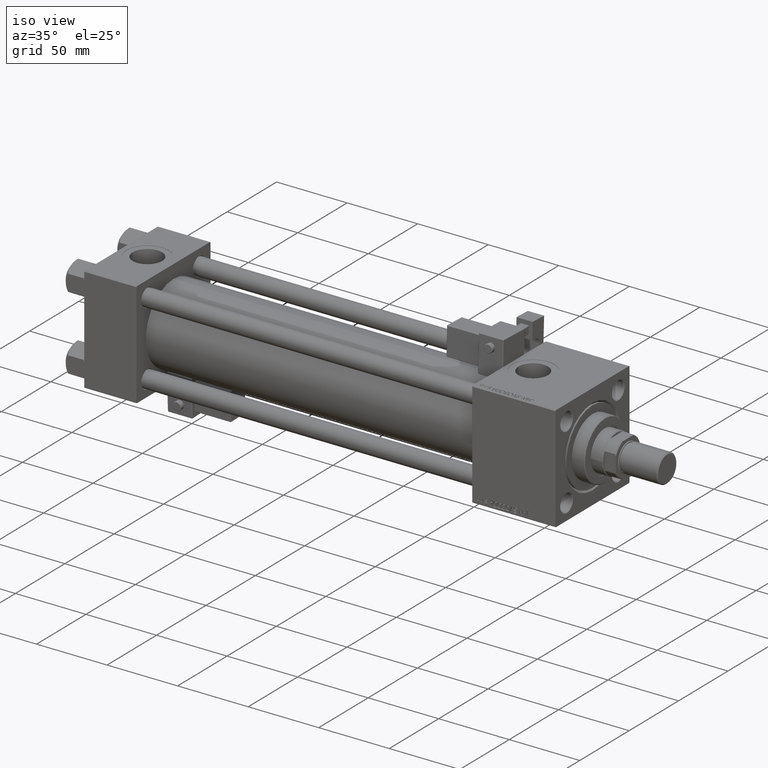
[diagram: clean part render]
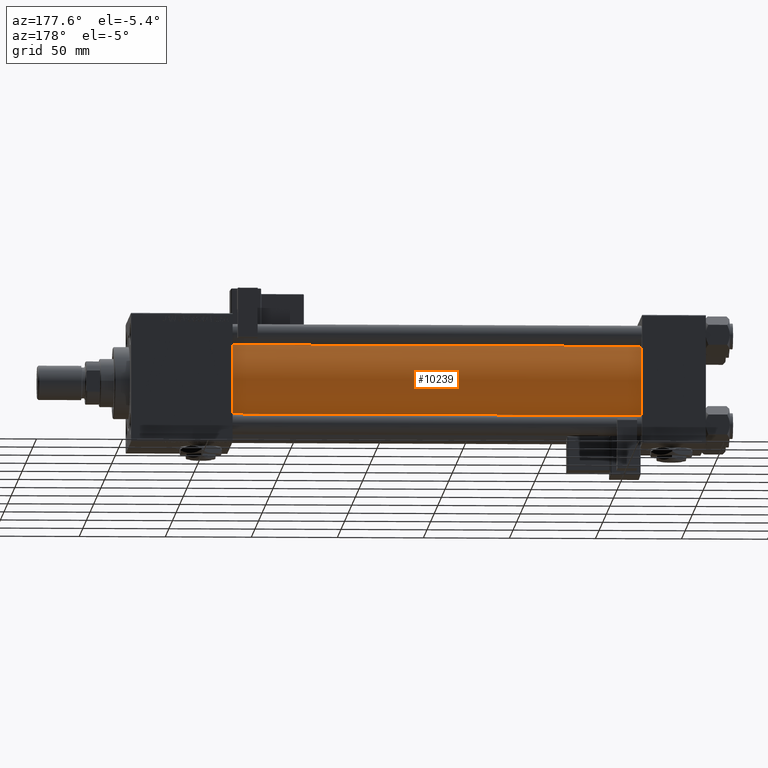
[diagram: tour spotlight — one face highlighted and labeled with its STEP entity id]
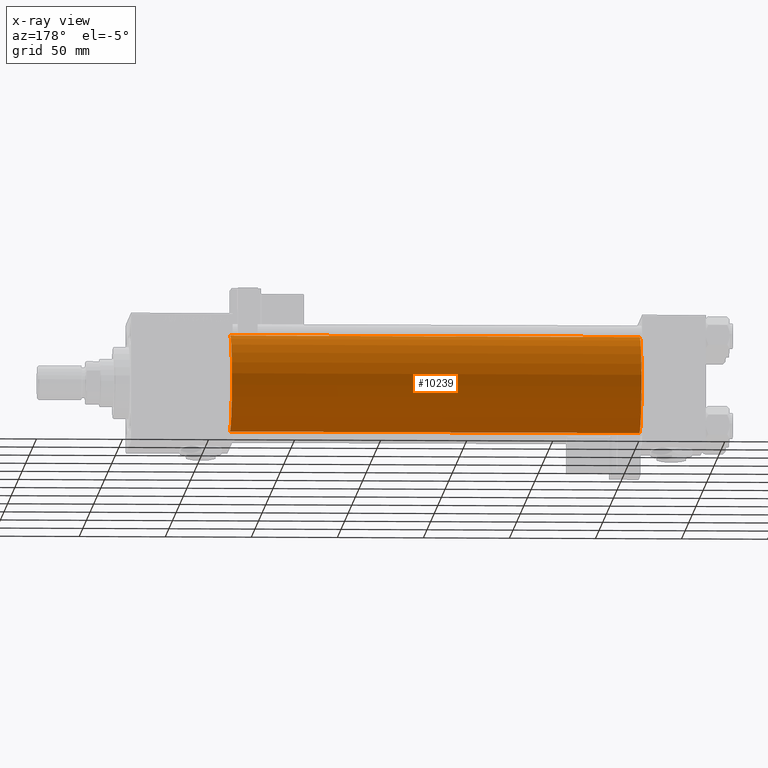
[diagram: x-ray of the same camera — body ghosted, this tour face saturated]
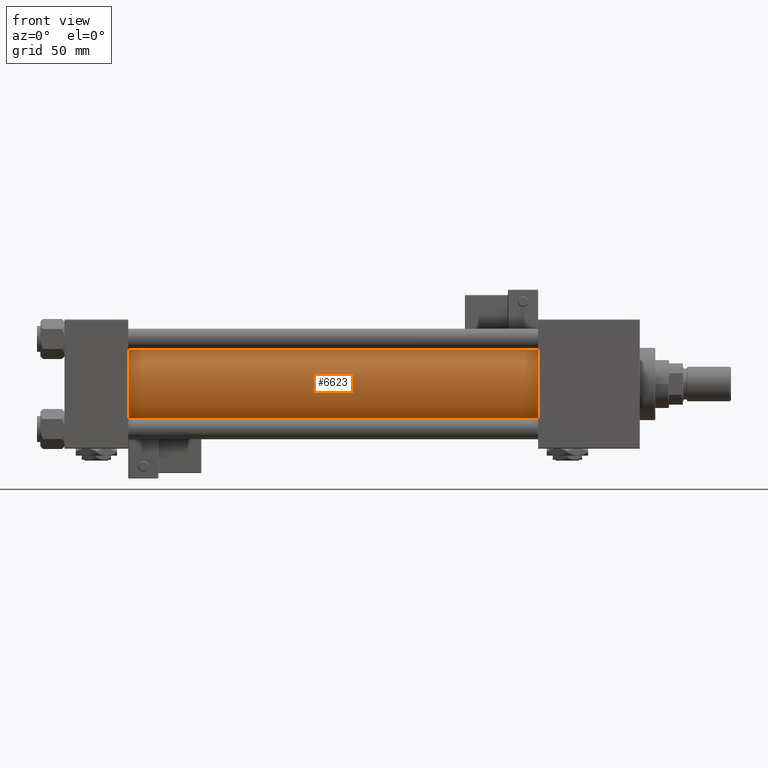
[diagram: tour spotlight — one face highlighted and labeled with its STEP entity id]
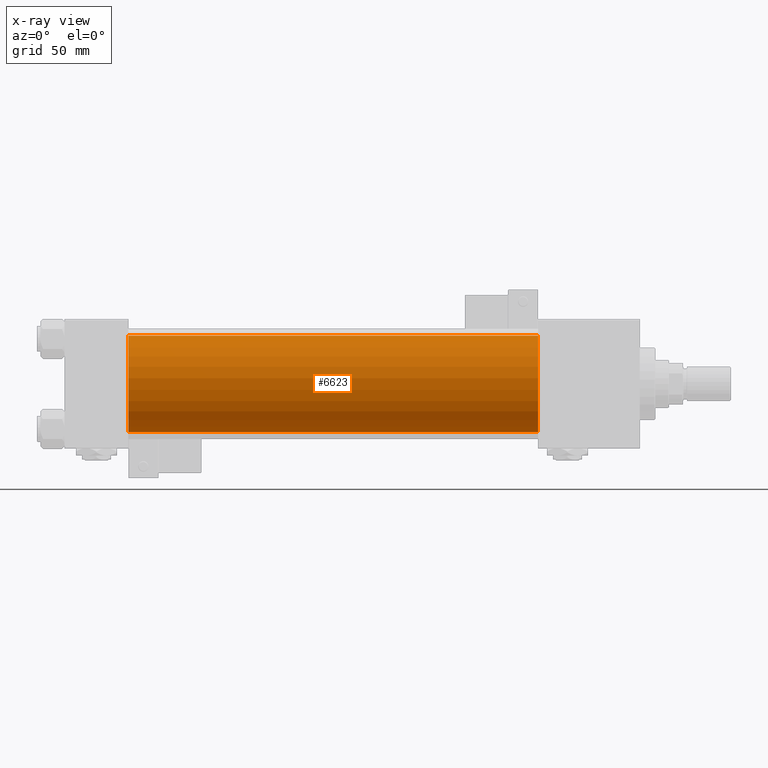
[diagram: x-ray of the same camera — body ghosted, this tour face saturated]
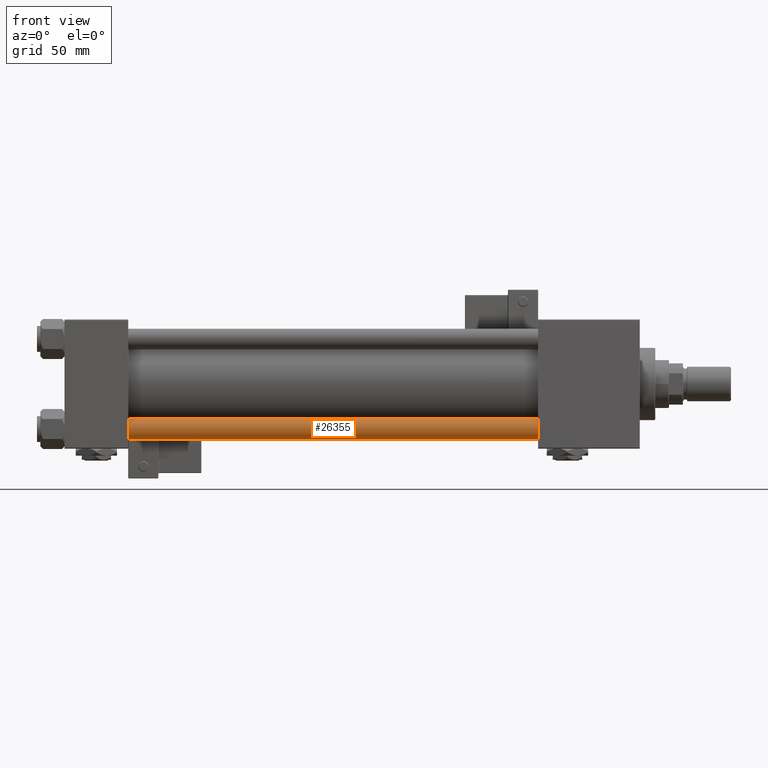
[diagram: tour spotlight — one face highlighted and labeled with its STEP entity id]
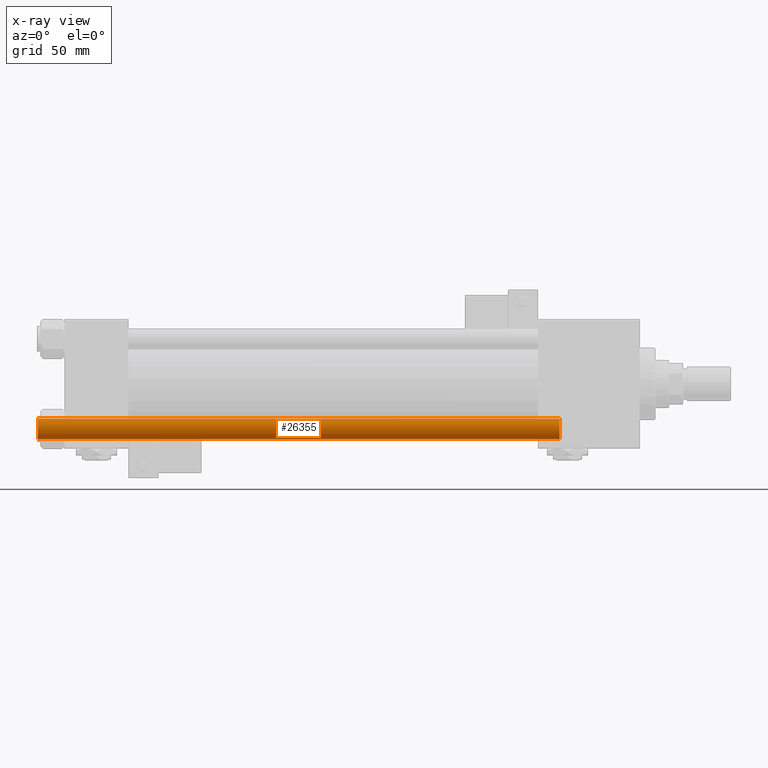
[diagram: x-ray of the same camera — body ghosted, this tour face saturated]
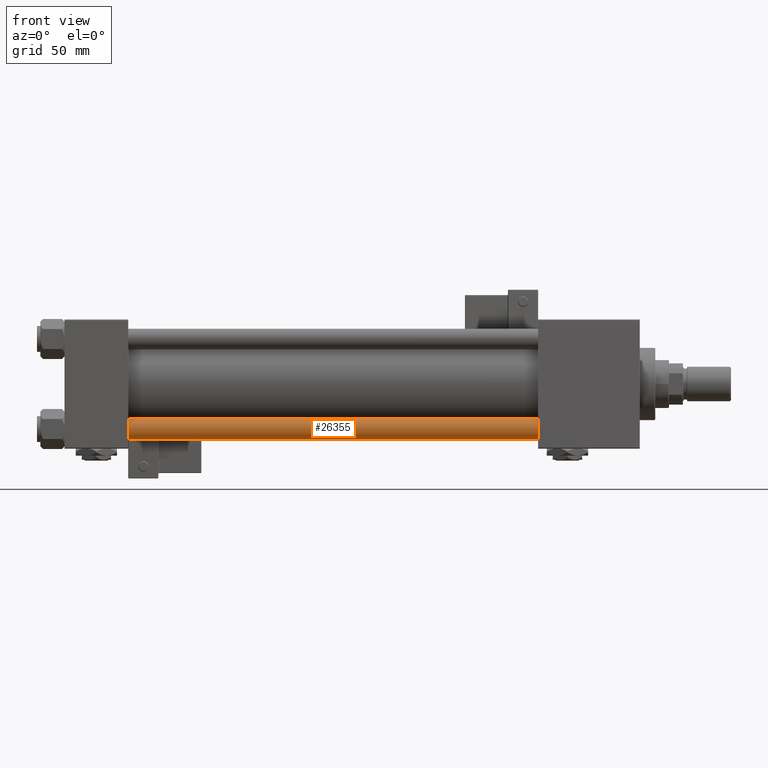
[diagram: tour spotlight — one face highlighted and labeled with its STEP entity id]
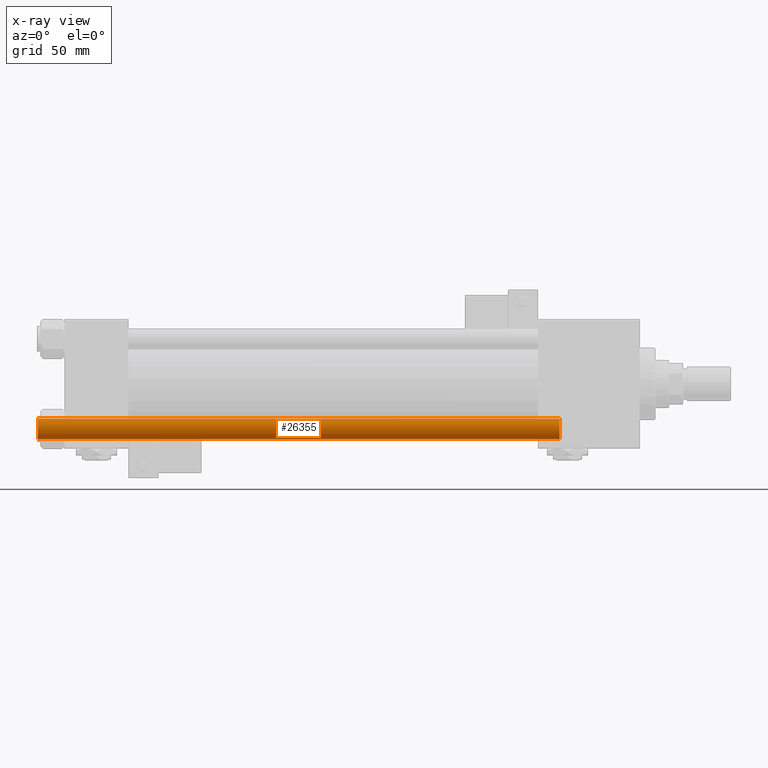
[diagram: x-ray of the same camera — body ghosted, this tour face saturated]
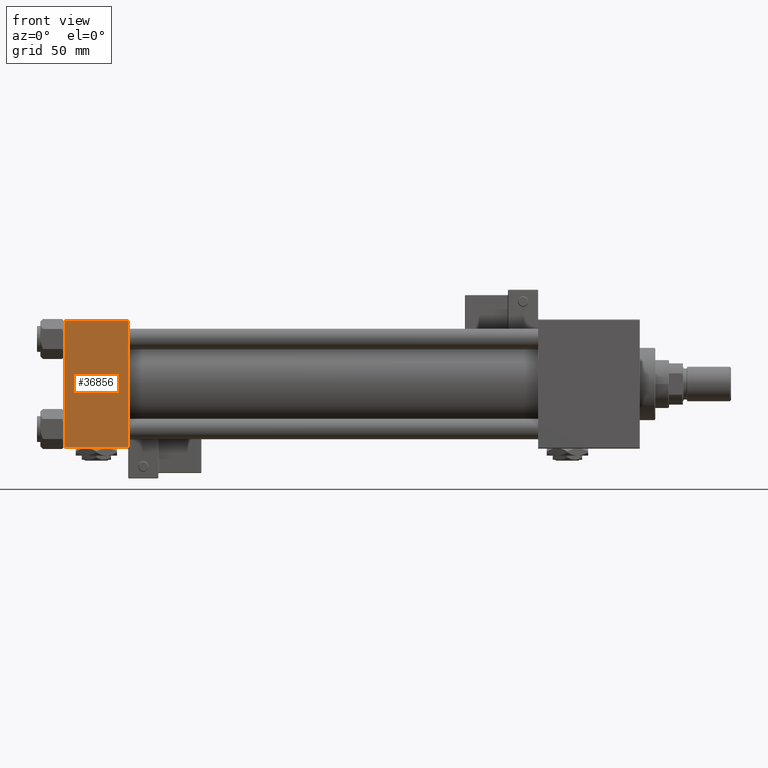
[diagram: tour spotlight — one face highlighted and labeled with its STEP entity id]
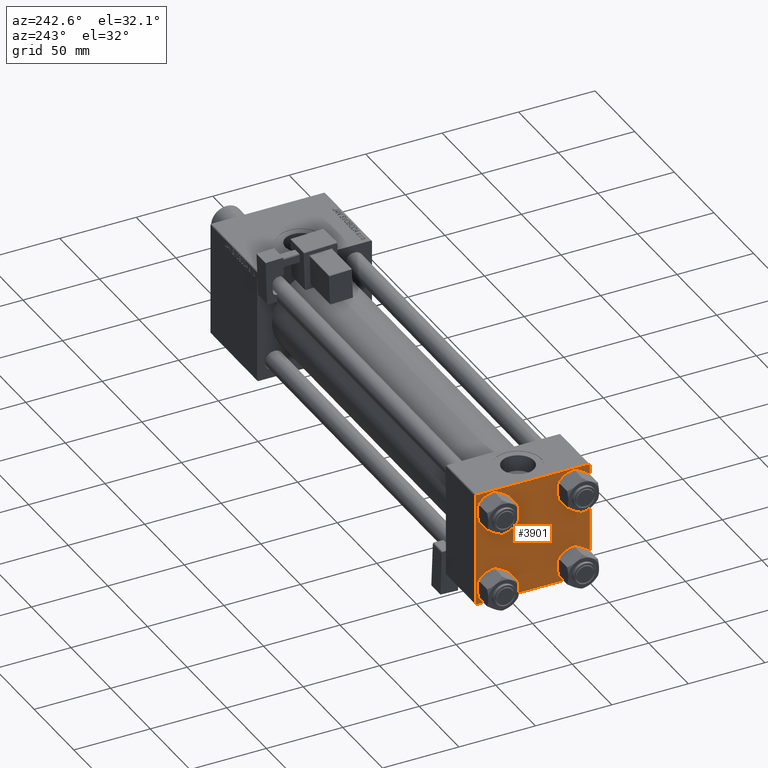
[diagram: tour spotlight — one face highlighted and labeled with its STEP entity id]
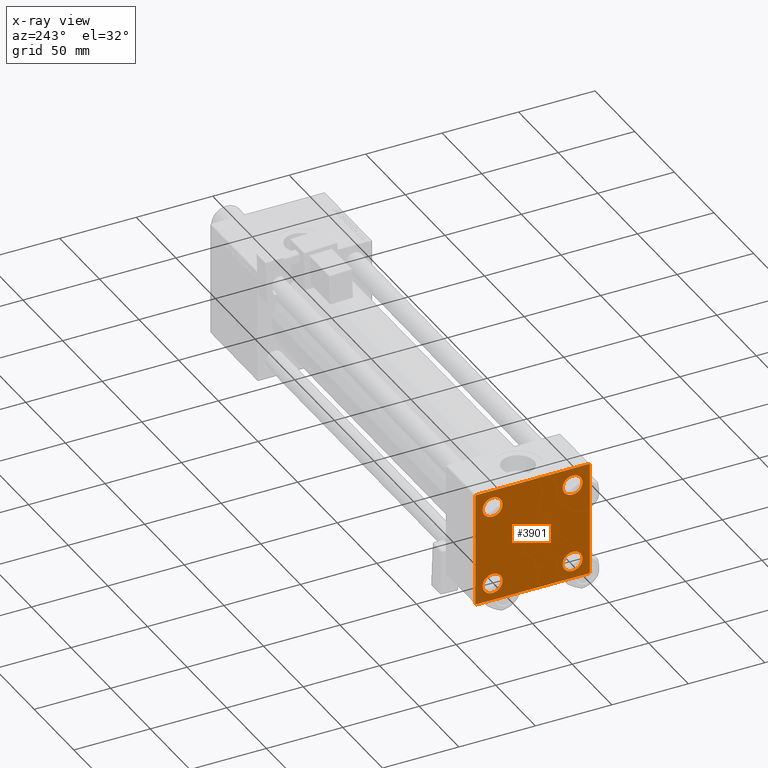
[diagram: x-ray of the same camera — body ghosted, this tour face saturated]
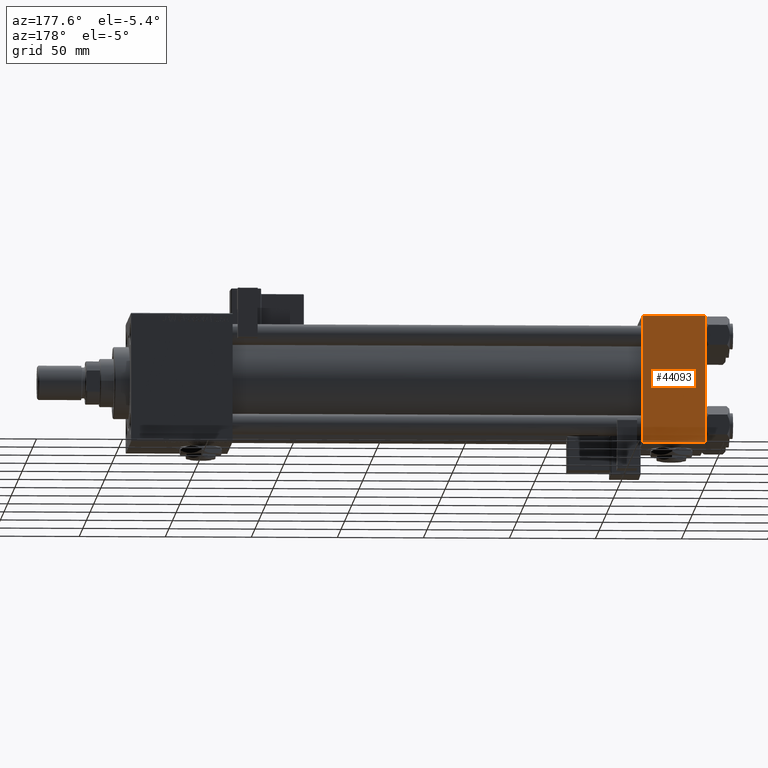
[diagram: tour spotlight — one face highlighted and labeled with its STEP entity id]
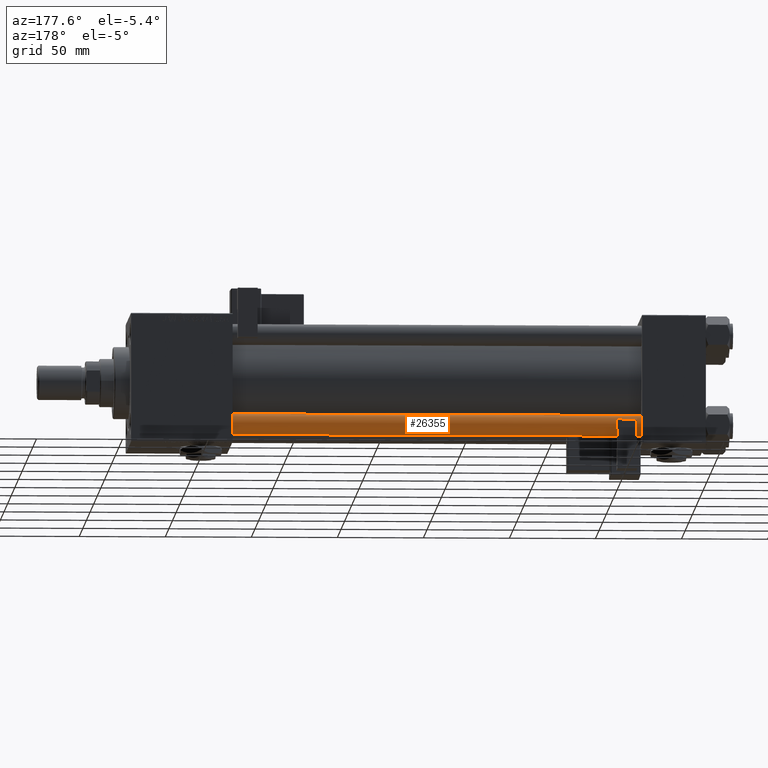
[diagram: tour spotlight — one face highlighted and labeled with its STEP entity id]
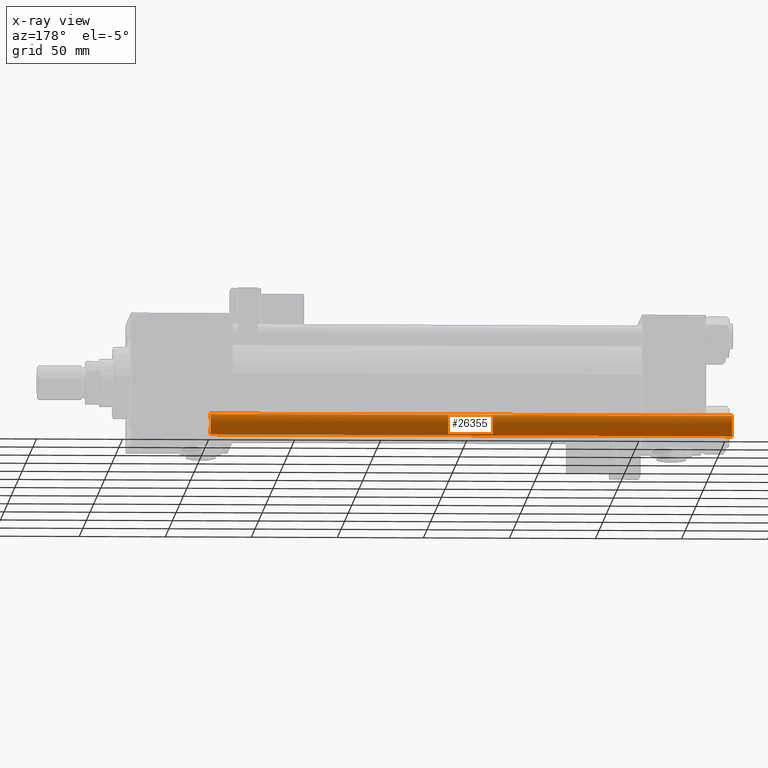
[diagram: x-ray of the same camera — body ghosted, this tour face saturated]
A machine part: a face-by-face anatomy tour. The part has 1417 B-rep faces; the first image is the clean iso view, then the 8 largest visible faces are spotlighted one at a time (largest first), each with its STEP entity span.

Face 1 — auxiliary view, entity #10239. An x-ray twin of the same camera follows (body ghosted, this face saturated) — the face is partly hidden behind the body. In plain terms, the highlighted cylindrical surface (partial cylindrical patch) has radius 28 mm, axis along (-1, -0, -0).
Definition (entity closure, byte-faithful):
#1012 = CIRCLE ( 'NONE', #2797, 28.00000000000000000 ) ;
#1920 = CARTESIAN_POINT ( 'NONE',  ( 274.9999999999999432, -2.602085213965210642E-15, 0.000000000000000000 ) ) ;
#2797 = AXIS2_PLACEMENT_3D ( 'NONE', #46128, #49769, #25023 ) ;
#3661 = VECTOR ( 'NONE', #34195, 1000.000000000000000 ) ;
#7247 = CARTESIAN_POINT ( 'NONE',  ( 274.9999999999999432, 8.269258236473784371E-16, -28.00000000000000000 ) ) ;
#8634 = CARTESIAN_POINT ( 'NONE',  ( 274.9999999999999432, -2.602085213965210642E-15, 28.00000000000000000 ) ) ;
#9116 = CARTESIAN_POINT ( 'NONE',  ( 274.9999999999999432, -2.602085213965210642E-15, 0.000000000000000000 ) ) ;
#9453 = LINE ( 'NONE', #8634, #3661 ) ;
#9574 = ORIENTED_EDGE ( 'NONE', *, *, #38151, .T. ) ;
#9719 = CIRCLE ( 'NONE', #33799, 28.00000000000000000 ) ;
#9996 = EDGE_CURVE ( 'NONE', #22721, #11408, #9719, .T. ) ;
#10239 = ADVANCED_FACE ( 'NONE', ( #31045 ), #47149, .T. ) ;
#11408 = VERTEX_POINT ( 'NONE', #48187 ) ;
#14714 = DIRECTION ( 'NONE',  ( 0.000000000000000000, 0.000000000000000000, -1.000000000000000000 ) ) ;
#18874 = DIRECTION ( 'NONE',  ( 1.000000000000000000, 0.000000000000000000, 0.000000000000000000 ) ) ;
#20467 = CARTESIAN_POINT ( 'NONE',  ( 37.00000000000000711, -2.602085213965210642E-15, 28.00000000000000000 ) ) ;
#20825 = LINE ( 'NONE', #50261, #33479 ) ;
#22475 = ORIENTED_EDGE ( 'NONE', *, *, #48616, .F. ) ;
#22721 = VERTEX_POINT ( 'NONE', #7247 ) ;
#23063 = ORIENTED_EDGE ( 'NONE', *, *, #48489, .T. ) ;
#23529 = ORIENTED_EDGE ( 'NONE', *, *, #9996, .F. ) ;
#25023 = DIRECTION ( 'NONE',  ( 0.000000000000000000, 0.000000000000000000, 1.000000000000000000 ) ) ;
#31045 = FACE_OUTER_BOUND ( 'NONE', #46124, .T. ) ;
#33479 = VECTOR ( 'NONE', #42213, 1000.000000000000000 ) ;
#33799 = AXIS2_PLACEMENT_3D ( 'NONE', #1920, #18874, #14714 ) ;
#34195 = DIRECTION ( 'NONE',  ( -1.000000000000000000, -0.000000000000000000, -0.000000000000000000 ) ) ;
#38151 = EDGE_CURVE ( 'NONE', #22721, #46910, #20825, .T. ) ;
#39377 = DIRECTION ( 'NONE',  ( 0.000000000000000000, 0.000000000000000000, 1.000000000000000000 ) ) ;
#42213 = DIRECTION ( 'NONE',  ( -1.000000000000000000, -0.000000000000000000, -0.000000000000000000 ) ) ;
#43004 = DIRECTION ( 'NONE',  ( -1.000000000000000000, -0.000000000000000000, -0.000000000000000000 ) ) ;
#44807 = CARTESIAN_POINT ( 'NONE',  ( 37.00000000000000711, 8.269258236473784371E-16, -28.00000000000000000 ) ) ;
#46124 = EDGE_LOOP ( 'NONE', ( #23529, #9574, #23063, #22475 ) ) ;
#46128 = CARTESIAN_POINT ( 'NONE',  ( 37.00000000000000711, -2.602085213965210642E-15, 0.000000000000000000 ) ) ;
#46910 = VERTEX_POINT ( 'NONE', #44807 ) ;
#47149 = CYLINDRICAL_SURFACE ( 'NONE', #51433, 28.00000000000000000 ) ;
#48187 = CARTESIAN_POINT ( 'NONE',  ( 274.9999999999999432, -2.602085213965210642E-15, 28.00000000000000000 ) ) ;
#48489 = EDGE_CURVE ( 'NONE', #46910, #51674, #1012, .T. ) ;
#48616 = EDGE_CURVE ( 'NONE', #11408, #51674, #9453, .T. ) ;
#49769 = DIRECTION ( 'NONE',  ( 1.000000000000000000, -0.000000000000000000, 0.000000000000000000 ) ) ;
#50261 = CARTESIAN_POINT ( 'NONE',  ( 274.9999999999999432, 8.269258236473784371E-16, -28.00000000000000000 ) ) ;
#51433 = AXIS2_PLACEMENT_3D ( 'NONE', #9116, #43004, #39377 ) ;
#51674 = VERTEX_POINT ( 'NONE', #20467 ) ;

Face 2 — front view, entity #6623. An x-ray twin of the same camera follows (body ghosted, this face saturated) — the face is partly hidden behind the body. In plain terms, the highlighted cylindrical surface (partial cylindrical patch) has radius 28 mm, axis along (-1, -0, -0).
Definition (entity closure, byte-faithful):
#3661 = VECTOR ( 'NONE', #34195, 1000.000000000000000 ) ;
#5069 = CYLINDRICAL_SURFACE ( 'NONE', #9723, 28.00000000000000000 ) ;
#5174 = CARTESIAN_POINT ( 'NONE',  ( 37.00000000000000711, -2.602085213965210642E-15, 0.000000000000000000 ) ) ;
#5982 = DIRECTION ( 'NONE',  ( 1.000000000000000000, -0.000000000000000000, 0.000000000000000000 ) ) ;
#6623 = ADVANCED_FACE ( 'NONE', ( #48365 ), #5069, .T. ) ;
#7247 = CARTESIAN_POINT ( 'NONE',  ( 274.9999999999999432, 8.269258236473784371E-16, -28.00000000000000000 ) ) ;
#8634 = CARTESIAN_POINT ( 'NONE',  ( 274.9999999999999432, -2.602085213965210642E-15, 28.00000000000000000 ) ) ;
#9453 = LINE ( 'NONE', #8634, #3661 ) ;
#9603 = DIRECTION ( 'NONE',  ( 0.000000000000000000, 0.000000000000000000, 1.000000000000000000 ) ) ;
#9723 = AXIS2_PLACEMENT_3D ( 'NONE', #10052, #51979, #18378 ) ;
#10052 = CARTESIAN_POINT ( 'NONE',  ( 274.9999999999999432, -2.602085213965210642E-15, 0.000000000000000000 ) ) ;
#10772 = CIRCLE ( 'NONE', #33837, 28.00000000000000000 ) ;
#11408 = VERTEX_POINT ( 'NONE', #48187 ) ;
#15866 = DIRECTION ( 'NONE',  ( 1.000000000000000000, 0.000000000000000000, 0.000000000000000000 ) ) ;
#15892 = ORIENTED_EDGE ( 'NONE', *, *, #48616, .T. ) ;
#16691 = ORIENTED_EDGE ( 'NONE', *, *, #26900, .F. ) ;
#17253 = ORIENTED_EDGE ( 'NONE', *, *, #38151, .F. ) ;
#18378 = DIRECTION ( 'NONE',  ( 0.000000000000000000, 0.000000000000000000, 1.000000000000000000 ) ) ;
#20467 = CARTESIAN_POINT ( 'NONE',  ( 37.00000000000000711, -2.602085213965210642E-15, 28.00000000000000000 ) ) ;
#20825 = LINE ( 'NONE', #50261, #33479 ) ;
#22721 = VERTEX_POINT ( 'NONE', #7247 ) ;
#26900 = EDGE_CURVE ( 'NONE', #11408, #22721, #40447, .T. ) ;
#31564 = AXIS2_PLACEMENT_3D ( 'NONE', #37249, #15866, #36440 ) ;
#33479 = VECTOR ( 'NONE', #42213, 1000.000000000000000 ) ;
#33837 = AXIS2_PLACEMENT_3D ( 'NONE', #5174, #5982, #9603 ) ;
#34195 = DIRECTION ( 'NONE',  ( -1.000000000000000000, -0.000000000000000000, -0.000000000000000000 ) ) ;
#36440 = DIRECTION ( 'NONE',  ( 0.000000000000000000, 0.000000000000000000, -1.000000000000000000 ) ) ;
#37249 = CARTESIAN_POINT ( 'NONE',  ( 274.9999999999999432, -2.602085213965210642E-15, 0.000000000000000000 ) ) ;
#37535 = ORIENTED_EDGE ( 'NONE', *, *, #49303, .T. ) ;
#38151 = EDGE_CURVE ( 'NONE', #22721, #46910, #20825, .T. ) ;
#40447 = CIRCLE ( 'NONE', #31564, 28.00000000000000000 ) ;
#42213 = DIRECTION ( 'NONE',  ( -1.000000000000000000, -0.000000000000000000, -0.000000000000000000 ) ) ;
#44807 = CARTESIAN_POINT ( 'NONE',  ( 37.00000000000000711, 8.269258236473784371E-16, -28.00000000000000000 ) ) ;
#46910 = VERTEX_POINT ( 'NONE', #44807 ) ;
#48187 = CARTESIAN_POINT ( 'NONE',  ( 274.9999999999999432, -2.602085213965210642E-15, 28.00000000000000000 ) ) ;
#48365 = FACE_OUTER_BOUND ( 'NONE', #52438, .T. ) ;
#48616 = EDGE_CURVE ( 'NONE', #11408, #51674, #9453, .T. ) ;
#49303 = EDGE_CURVE ( 'NONE', #51674, #46910, #10772, .T. ) ;
#50261 = CARTESIAN_POINT ( 'NONE',  ( 274.9999999999999432, 8.269258236473784371E-16, -28.00000000000000000 ) ) ;
#51674 = VERTEX_POINT ( 'NONE', #20467 ) ;
#51979 = DIRECTION ( 'NONE',  ( -1.000000000000000000, -0.000000000000000000, -0.000000000000000000 ) ) ;
#52438 = EDGE_LOOP ( 'NONE', ( #17253, #16691, #15892, #37535 ) ) ;

Face 3 — front view, entity #26355. An x-ray twin of the same camera follows (body ghosted, this face saturated) — the face is partly hidden behind the body. In plain terms, the highlighted cylindrical surface (edge-blend (fillet) strip) has radius 6 mm, axis along (1, 0, -0).
Definition (entity closure, byte-faithful):
#678 = DIRECTION ( 'NONE',  ( -1.000000000000000000, 0.000000000000000000, 0.000000000000000000 ) ) ;
#1745 = DIRECTION ( 'NONE',  ( -0.000000000000000000, -0.000000000000000000, -1.000000000000000000 ) ) ;
#2868 = CARTESIAN_POINT ( 'NONE',  ( 6.000000000000000888, 7.347880794884120722E-16, 303.5000000000000000 ) ) ;
#3709 = CARTESIAN_POINT ( 'NONE',  ( -6.000000000000000888, 0.000000000000000000, 304.0000000000000000 ) ) ;
#4377 = CIRCLE ( 'NONE', #46032, 6.000000000000000888 ) ;
#5114 = LINE ( 'NONE', #47858, #8282 ) ;
#5479 = EDGE_CURVE ( 'NONE', #18071, #48144, #4377, .T. ) ;
#6851 = ORIENTED_EDGE ( 'NONE', *, *, #5479, .T. ) ;
#8282 = VECTOR ( 'NONE', #1745, 1000.000000000000000 ) ;
#8854 = ORIENTED_EDGE ( 'NONE', *, *, #51306, .F. ) ;
#10113 = CARTESIAN_POINT ( 'NONE',  ( 0.000000000000000000, 0.000000000000000000, 303.5000000000000000 ) ) ;
#13731 = DIRECTION ( 'NONE',  ( -0.000000000000000000, -0.000000000000000000, -1.000000000000000000 ) ) ;
#13902 = VERTEX_POINT ( 'NONE', #45801 ) ;
#17139 = LINE ( 'NONE', #3709, #49861 ) ;
#17907 = CARTESIAN_POINT ( 'NONE',  ( 0.000000000000000000, 0.000000000000000000, 304.0000000000000000 ) ) ;
#18071 = VERTEX_POINT ( 'NONE', #44325 ) ;
#18322 = EDGE_CURVE ( 'NONE', #48144, #38599, #5114, .T. ) ;
#18431 = CARTESIAN_POINT ( 'NONE',  ( 6.000000000000000888, 7.347880794884120722E-16, 0.4999999999999449329 ) ) ;
#18722 = DIRECTION ( 'NONE',  ( 1.000000000000000000, 0.000000000000000000, 0.000000000000000000 ) ) ;
#19786 = DIRECTION ( 'NONE',  ( 1.000000000000000000, 0.000000000000000000, 0.000000000000000000 ) ) ;
#24219 = DIRECTION ( 'NONE',  ( -0.000000000000000000, -0.000000000000000000, 1.000000000000000000 ) ) ;
#26355 = ADVANCED_FACE ( 'NONE', ( #52035 ), #43187, .T. ) ;
#27458 = AXIS2_PLACEMENT_3D ( 'NONE', #29193, #24219, #19786 ) ;
#29193 = CARTESIAN_POINT ( 'NONE',  ( 0.000000000000000000, 0.000000000000000000, 0.4999999999999449329 ) ) ;
#32790 = CIRCLE ( 'NONE', #27458, 6.000000000000000888 ) ;
#33161 = DIRECTION ( 'NONE',  ( -0.000000000000000000, -0.000000000000000000, -1.000000000000000000 ) ) ;
#37414 = ORIENTED_EDGE ( 'NONE', *, *, #42230, .T. ) ;
#38599 = VERTEX_POINT ( 'NONE', #18431 ) ;
#42230 = EDGE_CURVE ( 'NONE', #38599, #13902, #32790, .T. ) ;
#43187 = CYLINDRICAL_SURFACE ( 'NONE', #46612, 6.000000000000000888 ) ;
#44325 = CARTESIAN_POINT ( 'NONE',  ( -6.000000000000000888, 0.000000000000000000, 303.5000000000000000 ) ) ;
#45801 = CARTESIAN_POINT ( 'NONE',  ( -6.000000000000000888, 0.000000000000000000, 0.4999999999999449329 ) ) ;
#46032 = AXIS2_PLACEMENT_3D ( 'NONE', #10113, #49265, #18722 ) ;
#46612 = AXIS2_PLACEMENT_3D ( 'NONE', #17907, #13731, #678 ) ;
#47858 = CARTESIAN_POINT ( 'NONE',  ( 6.000000000000000888, 7.347880794884120722E-16, 304.0000000000000000 ) ) ;
#48144 = VERTEX_POINT ( 'NONE', #2868 ) ;
#49265 = DIRECTION ( 'NONE',  ( 0.000000000000000000, 0.000000000000000000, -1.000000000000000000 ) ) ;
#49861 = VECTOR ( 'NONE', #33161, 1000.000000000000000 ) ;
#51306 = EDGE_CURVE ( 'NONE', #18071, #13902, #17139, .T. ) ;
#52035 = FACE_OUTER_BOUND ( 'NONE', #53541, .T. ) ;
#53541 = EDGE_LOOP ( 'NONE', ( #6851, #54562, #37414, #8854 ) ) ;
#54562 = ORIENTED_EDGE ( 'NONE', *, *, #18322, .T. ) ;

Face 4 — front view, entity #26355. An x-ray twin of the same camera follows (body ghosted, this face saturated) — the face is partly hidden behind the body. In plain terms, the highlighted cylindrical surface (edge-blend (fillet) strip) has radius 6 mm, axis along (-1, -0, -0).
Definition (entity closure, byte-faithful):
#678 = DIRECTION ( 'NONE',  ( -1.000000000000000000, 0.000000000000000000, 0.000000000000000000 ) ) ;
#1745 = DIRECTION ( 'NONE',  ( -0.000000000000000000, -0.000000000000000000, -1.000000000000000000 ) ) ;
#2868 = CARTESIAN_POINT ( 'NONE',  ( 6.000000000000000888, 7.347880794884120722E-16, 303.5000000000000000 ) ) ;
#3709 = CARTESIAN_POINT ( 'NONE',  ( -6.000000000000000888, 0.000000000000000000, 304.0000000000000000 ) ) ;
#4377 = CIRCLE ( 'NONE', #46032, 6.000000000000000888 ) ;
#5114 = LINE ( 'NONE', #47858, #8282 ) ;
#5479 = EDGE_CURVE ( 'NONE', #18071, #48144, #4377, .T. ) ;
#6851 = ORIENTED_EDGE ( 'NONE', *, *, #5479, .T. ) ;
#8282 = VECTOR ( 'NONE', #1745, 1000.000000000000000 ) ;
#8854 = ORIENTED_EDGE ( 'NONE', *, *, #51306, .F. ) ;
#10113 = CARTESIAN_POINT ( 'NONE',  ( 0.000000000000000000, 0.000000000000000000, 303.5000000000000000 ) ) ;
#13731 = DIRECTION ( 'NONE',  ( -0.000000000000000000, -0.000000000000000000, -1.000000000000000000 ) ) ;
#13902 = VERTEX_POINT ( 'NONE', #45801 ) ;
#17139 = LINE ( 'NONE', #3709, #49861 ) ;
#17907 = CARTESIAN_POINT ( 'NONE',  ( 0.000000000000000000, 0.000000000000000000, 304.0000000000000000 ) ) ;
#18071 = VERTEX_POINT ( 'NONE', #44325 ) ;
#18322 = EDGE_CURVE ( 'NONE', #48144, #38599, #5114, .T. ) ;
#18431 = CARTESIAN_POINT ( 'NONE',  ( 6.000000000000000888, 7.347880794884120722E-16, 0.4999999999999449329 ) ) ;
#18722 = DIRECTION ( 'NONE',  ( 1.000000000000000000, 0.000000000000000000, 0.000000000000000000 ) ) ;
#19786 = DIRECTION ( 'NONE',  ( 1.000000000000000000, 0.000000000000000000, 0.000000000000000000 ) ) ;
#24219 = DIRECTION ( 'NONE',  ( -0.000000000000000000, -0.000000000000000000, 1.000000000000000000 ) ) ;
#26355 = ADVANCED_FACE ( 'NONE', ( #52035 ), #43187, .T. ) ;
#27458 = AXIS2_PLACEMENT_3D ( 'NONE', #29193, #24219, #19786 ) ;
#29193 = CARTESIAN_POINT ( 'NONE',  ( 0.000000000000000000, 0.000000000000000000, 0.4999999999999449329 ) ) ;
#32790 = CIRCLE ( 'NONE', #27458, 6.000000000000000888 ) ;
#33161 = DIRECTION ( 'NONE',  ( -0.000000000000000000, -0.000000000000000000, -1.000000000000000000 ) ) ;
#37414 = ORIENTED_EDGE ( 'NONE', *, *, #42230, .T. ) ;
#38599 = VERTEX_POINT ( 'NONE', #18431 ) ;
#42230 = EDGE_CURVE ( 'NONE', #38599, #13902, #32790, .T. ) ;
#43187 = CYLINDRICAL_SURFACE ( 'NONE', #46612, 6.000000000000000888 ) ;
#44325 = CARTESIAN_POINT ( 'NONE',  ( -6.000000000000000888, 0.000000000000000000, 303.5000000000000000 ) ) ;
#45801 = CARTESIAN_POINT ( 'NONE',  ( -6.000000000000000888, 0.000000000000000000, 0.4999999999999449329 ) ) ;
#46032 = AXIS2_PLACEMENT_3D ( 'NONE', #10113, #49265, #18722 ) ;
#46612 = AXIS2_PLACEMENT_3D ( 'NONE', #17907, #13731, #678 ) ;
#47858 = CARTESIAN_POINT ( 'NONE',  ( 6.000000000000000888, 7.347880794884120722E-16, 304.0000000000000000 ) ) ;
#48144 = VERTEX_POINT ( 'NONE', #2868 ) ;
#49265 = DIRECTION ( 'NONE',  ( 0.000000000000000000, 0.000000000000000000, -1.000000000000000000 ) ) ;
#49861 = VECTOR ( 'NONE', #33161, 1000.000000000000000 ) ;
#51306 = EDGE_CURVE ( 'NONE', #18071, #13902, #17139, .T. ) ;
#52035 = FACE_OUTER_BOUND ( 'NONE', #53541, .T. ) ;
#53541 = EDGE_LOOP ( 'NONE', ( #6851, #54562, #37414, #8854 ) ) ;
#54562 = ORIENTED_EDGE ( 'NONE', *, *, #18322, .T. ) ;

Face 5 — front view, entity #36856. In plain terms, the highlighted planar face has unit normal (0, 1, 0).
Definition (entity closure, byte-faithful):
#44 = PLANE ( 'NONE',  #8624 ) ;
#2394 = VERTEX_POINT ( 'NONE', #38448 ) ;
#2678 = EDGE_LOOP ( 'NONE', ( #45001, #47995, #15079, #49373 ) ) ;
#3826 = DIRECTION ( 'NONE',  ( 1.000000000000000000, 0.000000000000000000, 0.000000000000000000 ) ) ;
#4155 = EDGE_CURVE ( 'NONE', #39079, #42718, #38533, .T. ) ;
#5962 = EDGE_CURVE ( 'NONE', #42718, #2394, #24935, .T. ) ;
#8624 = AXIS2_PLACEMENT_3D ( 'NONE', #38385, #54464, #12821 ) ;
#10955 = DIRECTION ( 'NONE',  ( 0.000000000000000000, 9.251858538542971581E-17, -1.000000000000000000 ) ) ;
#12285 = DIRECTION ( 'NONE',  ( -1.000000000000000000, 0.000000000000000000, 0.000000000000000000 ) ) ;
#12821 = DIRECTION ( 'NONE',  ( 0.000000000000000000, -9.251858538542971581E-17, 1.000000000000000000 ) ) ;
#13324 = CARTESIAN_POINT ( 'NONE',  ( 37.00000000000000000, -37.50000000000000711, 36.99999999999999289 ) ) ;
#15079 = ORIENTED_EDGE ( 'NONE', *, *, #31502, .F. ) ;
#15927 = VECTOR ( 'NONE', #3826, 1000.000000000000000 ) ;
#20635 = CARTESIAN_POINT ( 'NONE',  ( 37.00000000000000000, -37.50000000000000711, 36.99999999999999289 ) ) ;
#22881 = VECTOR ( 'NONE', #26019, 1000.000000000000000 ) ;
#24037 = CARTESIAN_POINT ( 'NONE',  ( 0.000000000000000000, -37.50000000000000000, -37.00000000000003553 ) ) ;
#24935 = LINE ( 'NONE', #33824, #15927 ) ;
#25873 = FACE_OUTER_BOUND ( 'NONE', #2678, .T. ) ;
#26019 = DIRECTION ( 'NONE',  ( 0.000000000000000000, 9.251858538542971581E-17, -1.000000000000000000 ) ) ;
#26556 = EDGE_CURVE ( 'NONE', #47502, #39079, #29227, .T. ) ;
#27623 = CARTESIAN_POINT ( 'NONE',  ( 37.00000000000000000, -37.50000000000000711, 37.49999999999999289 ) ) ;
#29227 = LINE ( 'NONE', #20635, #29780 ) ;
#29440 = CARTESIAN_POINT ( 'NONE',  ( 0.000000000000000000, -37.50000000000000711, 36.99999999999999289 ) ) ;
#29780 = VECTOR ( 'NONE', #12285, 1000.000000000000000 ) ;
#31502 = EDGE_CURVE ( 'NONE', #47502, #2394, #36788, .T. ) ;
#33824 = CARTESIAN_POINT ( 'NONE',  ( 37.00000000000000000, -37.50000000000000000, -37.00000000000003553 ) ) ;
#36788 = LINE ( 'NONE', #27623, #53775 ) ;
#36856 = ADVANCED_FACE ( 'NONE', ( #25873 ), #44, .F. ) ;
#38385 = CARTESIAN_POINT ( 'NONE',  ( 37.00000000000000000, -37.50000000000000711, 37.49999999999999289 ) ) ;
#38448 = CARTESIAN_POINT ( 'NONE',  ( 37.00000000000000000, -37.50000000000000000, -37.00000000000003553 ) ) ;
#38533 = LINE ( 'NONE', #44262, #22881 ) ;
#39079 = VERTEX_POINT ( 'NONE', #29440 ) ;
#42718 = VERTEX_POINT ( 'NONE', #24037 ) ;
#44262 = CARTESIAN_POINT ( 'NONE',  ( 0.000000000000000000, -37.50000000000000711, 37.49999999999999289 ) ) ;
#45001 = ORIENTED_EDGE ( 'NONE', *, *, #4155, .T. ) ;
#47502 = VERTEX_POINT ( 'NONE', #13324 ) ;
#47995 = ORIENTED_EDGE ( 'NONE', *, *, #5962, .T. ) ;
#49373 = ORIENTED_EDGE ( 'NONE', *, *, #26556, .T. ) ;
#53775 = VECTOR ( 'NONE', #10955, 1000.000000000000000 ) ;
#54464 = DIRECTION ( 'NONE',  ( -0.000000000000000000, 1.000000000000000000, 9.251858538542971581E-17 ) ) ;

Face 6 — auxiliary view, entity #3901. An x-ray twin of the same camera follows (body ghosted, this face saturated) — the face is partly hidden behind the body. In plain terms, the highlighted planar face has unit normal (-1, 0, 0).
Definition (entity closure, byte-faithful):
#319 = CARTESIAN_POINT ( 'NONE',  ( 0.000000000000000000, 37.49999999999999289, -37.50000000000000000 ) ) ;
#689 = EDGE_CURVE ( 'NONE', #24212, #45393, #27202, .T. ) ;
#1009 = CARTESIAN_POINT ( 'NONE',  ( 0.000000000000000000, -26.14999999999999147, -19.64999999999999503 ) ) ;
#1383 = EDGE_LOOP ( 'NONE', ( #21532, #22029 ) ) ;
#2167 = FACE_BOUND ( 'NONE', #1383, .T. ) ;
#2297 = ORIENTED_EDGE ( 'NONE', *, *, #31447, .T. ) ;
#2440 = PLANE ( 'NONE',  #49538 ) ;
#2627 = VECTOR ( 'NONE', #37323, 1000.000000000000000 ) ;
#2977 = VERTEX_POINT ( 'NONE', #30788 ) ;
#3575 = CARTESIAN_POINT ( 'NONE',  ( 0.000000000000000000, 26.14999999999999858, 26.15000000000000213 ) ) ;
#3762 = EDGE_LOOP ( 'NONE', ( #36343, #25700 ) ) ;
#3901 = ADVANCED_FACE ( 'NONE', ( #2167, #52973, #6066, #6628, #23564 ), #2440, .T. ) ;
#4155 = EDGE_CURVE ( 'NONE', #39079, #42718, #38533, .T. ) ;
#4268 = EDGE_CURVE ( 'NONE', #46923, #21888, #51310, .T. ) ;
#5565 = DIRECTION ( 'NONE',  ( 0.000000000000000000, 0.000000000000000000, 1.000000000000000000 ) ) ;
#6050 = VERTEX_POINT ( 'NONE', #13536 ) ;
#6066 = FACE_BOUND ( 'NONE', #27960, .T. ) ;
#6493 = EDGE_CURVE ( 'NONE', #35471, #12113, #15122, .T. ) ;
#6628 = FACE_BOUND ( 'NONE', #3762, .T. ) ;
#7163 = CIRCLE ( 'NONE', #16048, 6.500000000000015987 ) ;
#7338 = CARTESIAN_POINT ( 'NONE',  ( 0.000000000000000000, -37.24999999999975842, -37.25000000000027001 ) ) ;
#7598 = DIRECTION ( 'NONE',  ( 0.000000000000000000, -0.7071067811865524577, 0.7071067811865426878 ) ) ;
#8257 = CARTESIAN_POINT ( 'NONE',  ( 0.000000000000000000, 37.49999999999999289, 37.00000000000000000 ) ) ;
#8533 = EDGE_CURVE ( 'NONE', #47673, #6050, #42322, .T. ) ;
#8611 = EDGE_CURVE ( 'NONE', #39079, #12113, #30906, .T. ) ;
#8853 = EDGE_CURVE ( 'NONE', #21888, #46923, #7163, .T. ) ;
#8989 = DIRECTION ( 'NONE',  ( 0.000000000000000000, 0.000000000000000000, -1.000000000000000000 ) ) ;
#9457 = DIRECTION ( 'NONE',  ( 1.000000000000000000, -0.000000000000000000, 0.000000000000000000 ) ) ;
#9888 = CARTESIAN_POINT ( 'NONE',  ( 0.000000000000000000, -37.00000000000002132, -37.50000000000000711 ) ) ;
#10134 = CARTESIAN_POINT ( 'NONE',  ( 0.000000000000000000, 26.14999999999999858, 32.65000000000002700 ) ) ;
#10153 = AXIS2_PLACEMENT_3D ( 'NONE', #38029, #25236, #13302 ) ;
#10341 = CARTESIAN_POINT ( 'NONE',  ( -0.000000000000000000, -37.25000000000000000, 37.25000000000000000 ) ) ;
#10794 = CARTESIAN_POINT ( 'NONE',  ( 0.000000000000000000, -26.14999999999999147, 19.64999999999999147 ) ) ;
#11928 = DIRECTION ( 'NONE',  ( 0.000000000000000000, 0.000000000000000000, 1.000000000000000000 ) ) ;
#12013 = VECTOR ( 'NONE', #53874, 1000.000000000000114 ) ;
#12113 = VERTEX_POINT ( 'NONE', #39047 ) ;
#12375 = ORIENTED_EDGE ( 'NONE', *, *, #6493, .F. ) ;
#13302 = DIRECTION ( 'NONE',  ( 0.000000000000000000, 0.000000000000000000, 1.000000000000000000 ) ) ;
#13536 = CARTESIAN_POINT ( 'NONE',  ( 0.000000000000000000, 37.49999999999999289, -36.99999999999998579 ) ) ;
#14020 = VERTEX_POINT ( 'NONE', #1009 ) ;
#14904 = ORIENTED_EDGE ( 'NONE', *, *, #4268, .T. ) ;
#15122 = LINE ( 'NONE', #28706, #2627 ) ;
#16048 = AXIS2_PLACEMENT_3D ( 'NONE', #47495, #9457, #5565 ) ;
#16113 = CARTESIAN_POINT ( 'NONE',  ( 0.000000000000000000, 26.14999999999999858, 26.15000000000000213 ) ) ;
#16204 = EDGE_CURVE ( 'NONE', #14020, #50019, #17093, .T. ) ;
#16797 = ORIENTED_EDGE ( 'NONE', *, *, #16204, .T. ) ;
#17093 = CIRCLE ( 'NONE', #43714, 6.500000000000015987 ) ;
#18575 = EDGE_CURVE ( 'NONE', #2977, #42537, #46422, .T. ) ;
#18643 = EDGE_CURVE ( 'NONE', #38467, #48373, #46421, .T. ) ;
#19391 = CARTESIAN_POINT ( 'NONE',  ( 0.000000000000000000, 0.000000000000000000, 0.000000000000000000 ) ) ;
#19814 = CARTESIAN_POINT ( 'NONE',  ( 0.000000000000000000, 26.14999999999999858, -26.15000000000000213 ) ) ;
#20210 = AXIS2_PLACEMENT_3D ( 'NONE', #48423, #39823, #27051 ) ;
#20479 = VECTOR ( 'NONE', #8989, 1000.000000000000000 ) ;
#20524 = DIRECTION ( 'NONE',  ( 1.000000000000000000, -0.000000000000000000, 0.000000000000000000 ) ) ;
#20617 = DIRECTION ( 'NONE',  ( 0.000000000000000000, -1.000000000000000000, -9.251858538542972814E-17 ) ) ;
#20841 = EDGE_CURVE ( 'NONE', #48373, #38467, #51842, .T. ) ;
#21532 = ORIENTED_EDGE ( 'NONE', *, *, #20841, .T. ) ;
#21723 = EDGE_CURVE ( 'NONE', #35471, #47673, #25044, .T. ) ;
#21888 = VERTEX_POINT ( 'NONE', #28064 ) ;
#22029 = ORIENTED_EDGE ( 'NONE', *, *, #18643, .T. ) ;
#22230 = CARTESIAN_POINT ( 'NONE',  ( 0.000000000000000000, 26.14999999999999858, 19.64999999999998437 ) ) ;
#22881 = VECTOR ( 'NONE', #26019, 1000.000000000000000 ) ;
#23511 = VECTOR ( 'NONE', #46420, 1000.000000000000114 ) ;
#23564 = FACE_OUTER_BOUND ( 'NONE', #42948, .T. ) ;
#23693 = CARTESIAN_POINT ( 'NONE',  ( 0.000000000000000000, 26.14999999999999858, -19.64999999999998792 ) ) ;
#23983 = DIRECTION ( 'NONE',  ( 0.000000000000000000, 0.000000000000000000, 1.000000000000000000 ) ) ;
#24037 = CARTESIAN_POINT ( 'NONE',  ( 0.000000000000000000, -37.50000000000000000, -37.00000000000003553 ) ) ;
#24212 = VERTEX_POINT ( 'NONE', #10134 ) ;
#25044 = LINE ( 'NONE', #29487, #23511 ) ;
#25236 = DIRECTION ( 'NONE',  ( 1.000000000000000000, -0.000000000000000000, 0.000000000000000000 ) ) ;
#25700 = ORIENTED_EDGE ( 'NONE', *, *, #49804, .T. ) ;
#26019 = DIRECTION ( 'NONE',  ( 0.000000000000000000, 9.251858538542971581E-17, -1.000000000000000000 ) ) ;
#26140 = CARTESIAN_POINT ( 'NONE',  ( 0.000000000000000000, -26.14999999999999147, 26.15000000000000924 ) ) ;
#26152 = EDGE_CURVE ( 'NONE', #6050, #2977, #36969, .T. ) ;
#26922 = VECTOR ( 'NONE', #20617, 1000.000000000000000 ) ;
#27051 = DIRECTION ( 'NONE',  ( 0.000000000000000000, 0.000000000000000000, 1.000000000000000000 ) ) ;
#27086 = ORIENTED_EDGE ( 'NONE', *, *, #21723, .T. ) ;
#27202 = CIRCLE ( 'NONE', #39743, 6.500000000000023093 ) ;
#27347 = CARTESIAN_POINT ( 'NONE',  ( 0.000000000000000000, 36.99999999999999289, 37.50000000000000000 ) ) ;
#27960 = EDGE_LOOP ( 'NONE', ( #14904, #36584 ) ) ;
#27997 = CARTESIAN_POINT ( 'NONE',  ( 0.000000000000000000, -26.14999999999999147, -32.65000000000002700 ) ) ;
#28064 = CARTESIAN_POINT ( 'NONE',  ( 0.000000000000000000, 26.14999999999999858, -32.65000000000001990 ) ) ;
#28706 = CARTESIAN_POINT ( 'NONE',  ( 0.000000000000000000, 37.49999999999999289, 37.50000000000000000 ) ) ;
#28889 = CARTESIAN_POINT ( 'NONE',  ( 0.000000000000000000, 37.24999999999998579, -37.24999999999998579 ) ) ;
#29440 = CARTESIAN_POINT ( 'NONE',  ( 0.000000000000000000, -37.50000000000000711, 36.99999999999999289 ) ) ;
#29487 = CARTESIAN_POINT ( 'NONE',  ( 0.000000000000000000, 37.24999999999999289, 37.24999999999999289 ) ) ;
#29721 = VECTOR ( 'NONE', #7598, 1000.000000000000000 ) ;
#29793 = DIRECTION ( 'NONE',  ( 1.000000000000000000, -0.000000000000000000, 0.000000000000000000 ) ) ;
#30788 = CARTESIAN_POINT ( 'NONE',  ( 0.000000000000000000, 36.99999999999997868, -37.50000000000000000 ) ) ;
#30906 = LINE ( 'NONE', #10341, #31102 ) ;
#31102 = VECTOR ( 'NONE', #31459, 1000.000000000000114 ) ;
#31447 = EDGE_CURVE ( 'NONE', #42537, #42718, #40955, .T. ) ;
#31459 = DIRECTION ( 'NONE',  ( -0.000000000000000000, 0.7071067811865474617, 0.7071067811865474617 ) ) ;
#33292 = DIRECTION ( 'NONE',  ( 0.000000000000000000, 0.000000000000000000, 1.000000000000000000 ) ) ;
#35471 = VERTEX_POINT ( 'NONE', #27347 ) ;
#35686 = ORIENTED_EDGE ( 'NONE', *, *, #26152, .T. ) ;
#36343 = ORIENTED_EDGE ( 'NONE', *, *, #689, .T. ) ;
#36356 = DIRECTION ( 'NONE',  ( -1.000000000000000000, 0.000000000000000000, -0.000000000000000000 ) ) ;
#36584 = ORIENTED_EDGE ( 'NONE', *, *, #8853, .T. ) ;
#36969 = LINE ( 'NONE', #28889, #12013 ) ;
#37323 = DIRECTION ( 'NONE',  ( 0.000000000000000000, -1.000000000000000000, -9.251858538542971581E-17 ) ) ;
#37562 = AXIS2_PLACEMENT_3D ( 'NONE', #26140, #48063, #39469 ) ;
#37873 = ORIENTED_EDGE ( 'NONE', *, *, #38528, .T. ) ;
#38029 = CARTESIAN_POINT ( 'NONE',  ( 0.000000000000000000, -26.14999999999999147, 26.15000000000000924 ) ) ;
#38467 = VERTEX_POINT ( 'NONE', #10794 ) ;
#38528 = EDGE_CURVE ( 'NONE', #50019, #14020, #44142, .T. ) ;
#38533 = LINE ( 'NONE', #44262, #22881 ) ;
#39047 = CARTESIAN_POINT ( 'NONE',  ( 0.000000000000000000, -37.00000000000000711, 37.49999999999999289 ) ) ;
#39079 = VERTEX_POINT ( 'NONE', #29440 ) ;
#39469 = DIRECTION ( 'NONE',  ( 0.000000000000000000, 0.000000000000000000, 1.000000000000000000 ) ) ;
#39743 = AXIS2_PLACEMENT_3D ( 'NONE', #3575, #20524, #33292 ) ;
#39823 = DIRECTION ( 'NONE',  ( 1.000000000000000000, -0.000000000000000000, 0.000000000000000000 ) ) ;
#40789 = DIRECTION ( 'NONE',  ( -0.000000000000000000, 0.000000000000000000, 1.000000000000000000 ) ) ;
#40955 = LINE ( 'NONE', #7338, #29721 ) ;
#40997 = AXIS2_PLACEMENT_3D ( 'NONE', #16113, #49980, #11928 ) ;
#42301 = CARTESIAN_POINT ( 'NONE',  ( 0.000000000000000000, -26.14999999999999147, -26.15000000000000924 ) ) ;
#42322 = LINE ( 'NONE', #47023, #20479 ) ;
#42537 = VERTEX_POINT ( 'NONE', #9888 ) ;
#42718 = VERTEX_POINT ( 'NONE', #24037 ) ;
#42948 = EDGE_LOOP ( 'NONE', ( #53737, #35686, #50438, #2297, #51240, #43904, #12375, #27086 ) ) ;
#43714 = AXIS2_PLACEMENT_3D ( 'NONE', #42301, #29793, #46725 ) ;
#43904 = ORIENTED_EDGE ( 'NONE', *, *, #8611, .T. ) ;
#44142 = CIRCLE ( 'NONE', #20210, 6.500000000000015987 ) ;
#44215 = AXIS2_PLACEMENT_3D ( 'NONE', #19814, #48979, #23983 ) ;
#44262 = CARTESIAN_POINT ( 'NONE',  ( 0.000000000000000000, -37.50000000000000711, 37.49999999999999289 ) ) ;
#45393 = VERTEX_POINT ( 'NONE', #22230 ) ;
#46420 = DIRECTION ( 'NONE',  ( 0.000000000000000000, 0.7071067811865474617, -0.7071067811865474617 ) ) ;
#46421 = CIRCLE ( 'NONE', #37562, 6.500000000000023093 ) ;
#46422 = LINE ( 'NONE', #319, #26922 ) ;
#46725 = DIRECTION ( 'NONE',  ( 0.000000000000000000, 0.000000000000000000, 1.000000000000000000 ) ) ;
#46923 = VERTEX_POINT ( 'NONE', #23693 ) ;
#47023 = CARTESIAN_POINT ( 'NONE',  ( 0.000000000000000000, 37.49999999999999289, 37.50000000000000000 ) ) ;
#47495 = CARTESIAN_POINT ( 'NONE',  ( 0.000000000000000000, 26.14999999999999858, -26.15000000000000213 ) ) ;
#47673 = VERTEX_POINT ( 'NONE', #8257 ) ;
#48063 = DIRECTION ( 'NONE',  ( 1.000000000000000000, -0.000000000000000000, 0.000000000000000000 ) ) ;
#48373 = VERTEX_POINT ( 'NONE', #52806 ) ;
#48423 = CARTESIAN_POINT ( 'NONE',  ( 0.000000000000000000, -26.14999999999999147, -26.15000000000000924 ) ) ;
#48508 = EDGE_LOOP ( 'NONE', ( #16797, #37873 ) ) ;
#48979 = DIRECTION ( 'NONE',  ( 1.000000000000000000, -0.000000000000000000, 0.000000000000000000 ) ) ;
#49538 = AXIS2_PLACEMENT_3D ( 'NONE', #19391, #36356, #40789 ) ;
#49804 = EDGE_CURVE ( 'NONE', #45393, #24212, #54232, .T. ) ;
#49980 = DIRECTION ( 'NONE',  ( 1.000000000000000000, -0.000000000000000000, 0.000000000000000000 ) ) ;
#50019 = VERTEX_POINT ( 'NONE', #27997 ) ;
#50438 = ORIENTED_EDGE ( 'NONE', *, *, #18575, .T. ) ;
#51240 = ORIENTED_EDGE ( 'NONE', *, *, #4155, .F. ) ;
#51310 = CIRCLE ( 'NONE', #44215, 6.500000000000015987 ) ;
#51842 = CIRCLE ( 'NONE', #10153, 6.500000000000023093 ) ;
#52806 = CARTESIAN_POINT ( 'NONE',  ( 0.000000000000000000, -26.14999999999999147, 32.65000000000003411 ) ) ;
#52973 = FACE_BOUND ( 'NONE', #48508, .T. ) ;
#53737 = ORIENTED_EDGE ( 'NONE', *, *, #8533, .T. ) ;
#53874 = DIRECTION ( 'NONE',  ( -0.000000000000000000, -0.7071067811865474617, -0.7071067811865474617 ) ) ;
#54232 = CIRCLE ( 'NONE', #40997, 6.500000000000023093 ) ;

Face 7 — auxiliary view, entity #44093. In plain terms, the highlighted planar face has unit normal (0, 1, 0).
Definition (entity closure, byte-faithful):
#1336 = EDGE_LOOP ( 'NONE', ( #12046, #33481, #3224, #44633 ) ) ;
#1951 = LINE ( 'NONE', #48901, #34029 ) ;
#3224 = ORIENTED_EDGE ( 'NONE', *, *, #8533, .F. ) ;
#4469 = AXIS2_PLACEMENT_3D ( 'NONE', #31433, #13939, #48921 ) ;
#6050 = VERTEX_POINT ( 'NONE', #13536 ) ;
#8135 = VECTOR ( 'NONE', #29629, 1000.000000000000000 ) ;
#8257 = CARTESIAN_POINT ( 'NONE',  ( 0.000000000000000000, 37.49999999999999289, 37.00000000000000000 ) ) ;
#8533 = EDGE_CURVE ( 'NONE', #47673, #6050, #42322, .T. ) ;
#8989 = DIRECTION ( 'NONE',  ( 0.000000000000000000, 0.000000000000000000, -1.000000000000000000 ) ) ;
#10769 = CARTESIAN_POINT ( 'NONE',  ( 37.00000000000000000, 37.49999999999999289, -36.99999999999998579 ) ) ;
#12046 = ORIENTED_EDGE ( 'NONE', *, *, #18786, .T. ) ;
#12138 = DIRECTION ( 'NONE',  ( 1.000000000000000000, 0.000000000000000000, 0.000000000000000000 ) ) ;
#13536 = CARTESIAN_POINT ( 'NONE',  ( 0.000000000000000000, 37.49999999999999289, -36.99999999999998579 ) ) ;
#13939 = DIRECTION ( 'NONE',  ( -0.000000000000000000, 1.000000000000000000, 0.000000000000000000 ) ) ;
#17676 = CARTESIAN_POINT ( 'NONE',  ( 37.00000000000000000, 37.49999999999999289, -36.99999999999998579 ) ) ;
#18786 = EDGE_CURVE ( 'NONE', #33993, #41331, #1951, .T. ) ;
#20479 = VECTOR ( 'NONE', #8989, 1000.000000000000000 ) ;
#22549 = PLANE ( 'NONE',  #4469 ) ;
#28414 = VECTOR ( 'NONE', #12138, 1000.000000000000000 ) ;
#29355 = CARTESIAN_POINT ( 'NONE',  ( 37.00000000000000000, 37.49999999999999289, 37.00000000000000000 ) ) ;
#29629 = DIRECTION ( 'NONE',  ( -1.000000000000000000, 0.000000000000000000, 0.000000000000000000 ) ) ;
#31433 = CARTESIAN_POINT ( 'NONE',  ( 37.00000000000000000, 37.49999999999999289, 37.50000000000000000 ) ) ;
#33481 = ORIENTED_EDGE ( 'NONE', *, *, #50234, .T. ) ;
#33993 = VERTEX_POINT ( 'NONE', #36647 ) ;
#34029 = VECTOR ( 'NONE', #35860, 1000.000000000000000 ) ;
#35860 = DIRECTION ( 'NONE',  ( 0.000000000000000000, 0.000000000000000000, -1.000000000000000000 ) ) ;
#36647 = CARTESIAN_POINT ( 'NONE',  ( 37.00000000000000000, 37.49999999999999289, 37.00000000000000000 ) ) ;
#40036 = FACE_OUTER_BOUND ( 'NONE', #1336, .T. ) ;
#41331 = VERTEX_POINT ( 'NONE', #10769 ) ;
#42322 = LINE ( 'NONE', #47023, #20479 ) ;
#44093 = ADVANCED_FACE ( 'NONE', ( #40036 ), #22549, .T. ) ;
#44633 = ORIENTED_EDGE ( 'NONE', *, *, #46654, .T. ) ;
#45208 = LINE ( 'NONE', #29355, #28414 ) ;
#46654 = EDGE_CURVE ( 'NONE', #47673, #33993, #45208, .T. ) ;
#47023 = CARTESIAN_POINT ( 'NONE',  ( 0.000000000000000000, 37.49999999999999289, 37.50000000000000000 ) ) ;
#47673 = VERTEX_POINT ( 'NONE', #8257 ) ;
#48901 = CARTESIAN_POINT ( 'NONE',  ( 37.00000000000000000, 37.49999999999999289, 37.50000000000000000 ) ) ;
#48921 = DIRECTION ( 'NONE',  ( 0.000000000000000000, -0.000000000000000000, 1.000000000000000000 ) ) ;
#50234 = EDGE_CURVE ( 'NONE', #41331, #6050, #51276, .T. ) ;
#51276 = LINE ( 'NONE', #17676, #8135 ) ;

Face 8 — auxiliary view, entity #26355. An x-ray twin of the same camera follows (body ghosted, this face saturated) — the face is partly hidden behind the body. In plain terms, the highlighted cylindrical surface (edge-blend (fillet) strip) has radius 6 mm, axis along (1, -0, 0).
Definition (entity closure, byte-faithful):
#678 = DIRECTION ( 'NONE',  ( -1.000000000000000000, 0.000000000000000000, 0.000000000000000000 ) ) ;
#1745 = DIRECTION ( 'NONE',  ( -0.000000000000000000, -0.000000000000000000, -1.000000000000000000 ) ) ;
#2868 = CARTESIAN_POINT ( 'NONE',  ( 6.000000000000000888, 7.347880794884120722E-16, 303.5000000000000000 ) ) ;
#3709 = CARTESIAN_POINT ( 'NONE',  ( -6.000000000000000888, 0.000000000000000000, 304.0000000000000000 ) ) ;
#4377 = CIRCLE ( 'NONE', #46032, 6.000000000000000888 ) ;
#5114 = LINE ( 'NONE', #47858, #8282 ) ;
#5479 = EDGE_CURVE ( 'NONE', #18071, #48144, #4377, .T. ) ;
#6851 = ORIENTED_EDGE ( 'NONE', *, *, #5479, .T. ) ;
#8282 = VECTOR ( 'NONE', #1745, 1000.000000000000000 ) ;
#8854 = ORIENTED_EDGE ( 'NONE', *, *, #51306, .F. ) ;
#10113 = CARTESIAN_POINT ( 'NONE',  ( 0.000000000000000000, 0.000000000000000000, 303.5000000000000000 ) ) ;
#13731 = DIRECTION ( 'NONE',  ( -0.000000000000000000, -0.000000000000000000, -1.000000000000000000 ) ) ;
#13902 = VERTEX_POINT ( 'NONE', #45801 ) ;
#17139 = LINE ( 'NONE', #3709, #49861 ) ;
#17907 = CARTESIAN_POINT ( 'NONE',  ( 0.000000000000000000, 0.000000000000000000, 304.0000000000000000 ) ) ;
#18071 = VERTEX_POINT ( 'NONE', #44325 ) ;
#18322 = EDGE_CURVE ( 'NONE', #48144, #38599, #5114, .T. ) ;
#18431 = CARTESIAN_POINT ( 'NONE',  ( 6.000000000000000888, 7.347880794884120722E-16, 0.4999999999999449329 ) ) ;
#18722 = DIRECTION ( 'NONE',  ( 1.000000000000000000, 0.000000000000000000, 0.000000000000000000 ) ) ;
#19786 = DIRECTION ( 'NONE',  ( 1.000000000000000000, 0.000000000000000000, 0.000000000000000000 ) ) ;
#24219 = DIRECTION ( 'NONE',  ( -0.000000000000000000, -0.000000000000000000, 1.000000000000000000 ) ) ;
#26355 = ADVANCED_FACE ( 'NONE', ( #52035 ), #43187, .T. ) ;
#27458 = AXIS2_PLACEMENT_3D ( 'NONE', #29193, #24219, #19786 ) ;
#29193 = CARTESIAN_POINT ( 'NONE',  ( 0.000000000000000000, 0.000000000000000000, 0.4999999999999449329 ) ) ;
#32790 = CIRCLE ( 'NONE', #27458, 6.000000000000000888 ) ;
#33161 = DIRECTION ( 'NONE',  ( -0.000000000000000000, -0.000000000000000000, -1.000000000000000000 ) ) ;
#37414 = ORIENTED_EDGE ( 'NONE', *, *, #42230, .T. ) ;
#38599 = VERTEX_POINT ( 'NONE', #18431 ) ;
#42230 = EDGE_CURVE ( 'NONE', #38599, #13902, #32790, .T. ) ;
#43187 = CYLINDRICAL_SURFACE ( 'NONE', #46612, 6.000000000000000888 ) ;
#44325 = CARTESIAN_POINT ( 'NONE',  ( -6.000000000000000888, 0.000000000000000000, 303.5000000000000000 ) ) ;
#45801 = CARTESIAN_POINT ( 'NONE',  ( -6.000000000000000888, 0.000000000000000000, 0.4999999999999449329 ) ) ;
#46032 = AXIS2_PLACEMENT_3D ( 'NONE', #10113, #49265, #18722 ) ;
#46612 = AXIS2_PLACEMENT_3D ( 'NONE', #17907, #13731, #678 ) ;
#47858 = CARTESIAN_POINT ( 'NONE',  ( 6.000000000000000888, 7.347880794884120722E-16, 304.0000000000000000 ) ) ;
#48144 = VERTEX_POINT ( 'NONE', #2868 ) ;
#49265 = DIRECTION ( 'NONE',  ( 0.000000000000000000, 0.000000000000000000, -1.000000000000000000 ) ) ;
#49861 = VECTOR ( 'NONE', #33161, 1000.000000000000000 ) ;
#51306 = EDGE_CURVE ( 'NONE', #18071, #13902, #17139, .T. ) ;
#52035 = FACE_OUTER_BOUND ( 'NONE', #53541, .T. ) ;
#53541 = EDGE_LOOP ( 'NONE', ( #6851, #54562, #37414, #8854 ) ) ;
#54562 = ORIENTED_EDGE ( 'NONE', *, *, #18322, .T. ) ;